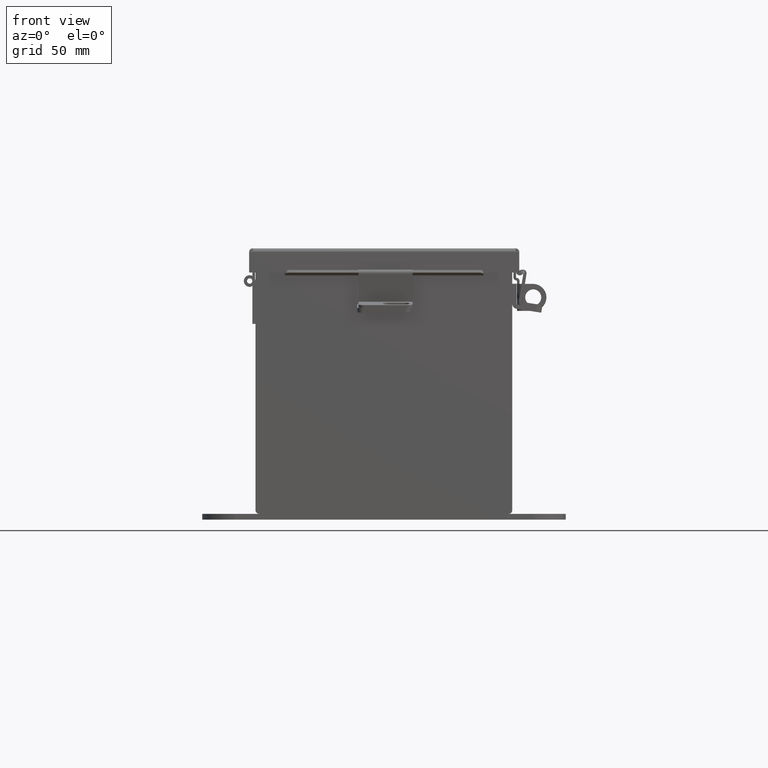
[diagram: clean part render]
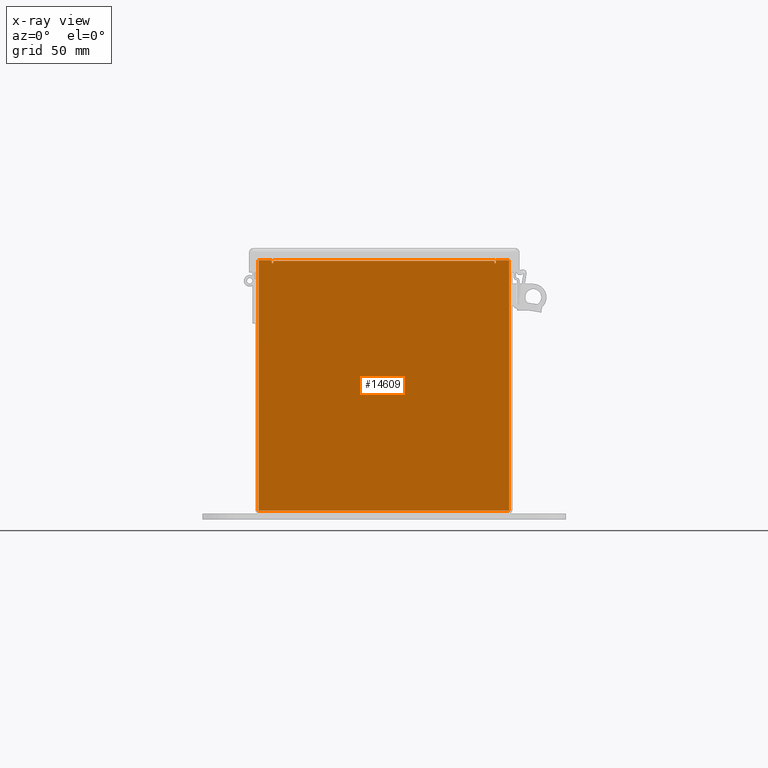
[diagram: x-ray — body ghosted, one internal face saturated and labeled with its STEP entity id]
A machine part, front view, then the same camera in x-ray: the body is ghosted and one INTERNAL B-rep face — a face not visible from any outside direction — is saturated and labeled: STEP entity #14609.
In plain terms, the highlighted planar face has unit normal (-0, 1, -0).
Its self-contained STEP definition (entity closure, byte-faithful):
#239 = VECTOR ( 'NONE', #3798, 39.37007874015748100 ) ;
#287 = DIRECTION ( 'NONE',  ( -1.000000000000000000, -5.526334185345597900E-031, 0.0000000000000000000 ) ) ;
#300 = CARTESIAN_POINT ( 'NONE',  ( 2.619650000000001800, -0.07469999999999797600, 2.874949999999998800 ) ) ;
#539 = CARTESIAN_POINT ( 'NONE',  ( -2.925299999999998200, -0.07470000000000015500, 2.925300000000000000 ) ) ;
#632 = LINE ( 'NONE', #539, #3313 ) ;
#1118 = LINE ( 'NONE', #300, #1848 ) ;
#1525 = LINE ( 'NONE', #14038, #10720 ) ;
#1708 = DIRECTION ( 'NONE',  ( 1.000000000000000000, 5.526334185345597900E-031, 0.0000000000000000000 ) ) ;
#1720 = CARTESIAN_POINT ( 'NONE',  ( 0.0000000000000000000, -0.07470000000000015500, 0.0000000000000000000 ) ) ;
#1848 = VECTOR ( 'NONE', #2578, 39.37007874015748100 ) ;
#1945 = ORIENTED_EDGE ( 'NONE', *, *, #4670, .F. ) ;
#2070 = CIRCLE ( 'NONE', #12274, 0.01867500000000003900 ) ;
#2073 = VERTEX_POINT ( 'NONE', #8975 ) ;
#2104 = VECTOR ( 'NONE', #3303, 39.37007874015748100 ) ;
#2140 = CARTESIAN_POINT ( 'NONE',  ( -2.619649999999998300, -0.07470000000000015500, 2.925299999999999100 ) ) ;
#2438 = EDGE_CURVE ( 'NONE', #12102, #5162, #12872, .T. ) ;
#2578 = DIRECTION ( 'NONE',  ( 1.085143195099989400E-014, -1.186875369640612000E-014, 1.000000000000000000 ) ) ;
#2649 = CARTESIAN_POINT ( 'NONE',  ( -2.925299999999998200, -0.07470000000000015500, 2.925300000000000000 ) ) ;
#2824 = PLANE ( 'NONE',  #5900 ) ;
#2869 = DIRECTION ( 'NONE',  ( 0.0000000000000000000, 0.0000000000000000000, -1.000000000000000000 ) ) ;
#2887 = ORIENTED_EDGE ( 'NONE', *, *, #8235, .F. ) ;
#3165 = CARTESIAN_POINT ( 'NONE',  ( -2.600974999999998300, -0.07469999999999907300, 2.874949999999999700 ) ) ;
#3303 = DIRECTION ( 'NONE',  ( 0.0000000000000000000, 0.0000000000000000000, -1.000000000000000000 ) ) ;
#3313 = VECTOR ( 'NONE', #1708, 39.37007874015748100 ) ;
#3438 = EDGE_LOOP ( 'NONE', ( #7491, #6012, #6727, #1945, #4649, #4490, #4234, #2887, #5893, #12651, #12156, #12629 ) ) ;
#3525 = VERTEX_POINT ( 'NONE', #6858 ) ;
#3661 = VECTOR ( 'NONE', #7683, 39.37007874015748100 ) ;
#3798 = DIRECTION ( 'NONE',  ( 1.000000000000000000, 5.526334185345597900E-031, 0.0000000000000000000 ) ) ;
#3884 = VECTOR ( 'NONE', #4735, 39.37007874015748100 ) ;
#3892 = DIRECTION ( 'NONE',  ( 0.0000000000000000000, 0.0000000000000000000, -1.000000000000000000 ) ) ;
#3964 = VERTEX_POINT ( 'NONE', #14067 ) ;
#4047 = VECTOR ( 'NONE', #10617, 39.37007874015748100 ) ;
#4234 = ORIENTED_EDGE ( 'NONE', *, *, #6755, .F. ) ;
#4327 = DIRECTION ( 'NONE',  ( 0.0000000000000000000, 0.0000000000000000000, -1.000000000000000000 ) ) ;
#4393 = VERTEX_POINT ( 'NONE', #11534 ) ;
#4490 = ORIENTED_EDGE ( 'NONE', *, *, #13754, .F. ) ;
#4649 = ORIENTED_EDGE ( 'NONE', *, *, #10759, .F. ) ;
#4670 = EDGE_CURVE ( 'NONE', #11809, #2073, #10006, .T. ) ;
#4735 = DIRECTION ( 'NONE',  ( 0.0000000000000000000, 0.0000000000000000000, 1.000000000000000000 ) ) ;
#4975 = CARTESIAN_POINT ( 'NONE',  ( 2.582300000000001400, -0.07469999999999907300, 2.874949999999998800 ) ) ;
#5162 = VERTEX_POINT ( 'NONE', #9178 ) ;
#5411 = VERTEX_POINT ( 'NONE', #8285 ) ;
#5413 = EDGE_CURVE ( 'NONE', #3964, #9016, #7102, .T. ) ;
#5851 = FACE_OUTER_BOUND ( 'NONE', #3438, .T. ) ;
#5893 = ORIENTED_EDGE ( 'NONE', *, *, #10471, .F. ) ;
#5900 = AXIS2_PLACEMENT_3D ( 'NONE', #1720, #9769, #2869 ) ;
#6012 = ORIENTED_EDGE ( 'NONE', *, *, #2438, .F. ) ;
#6168 = VERTEX_POINT ( 'NONE', #4975 ) ;
#6193 = CARTESIAN_POINT ( 'NONE',  ( -2.582299999999998300, -0.07470000000000015500, 2.912299999999998800 ) ) ;
#6465 = VERTEX_POINT ( 'NONE', #10043 ) ;
#6513 = CARTESIAN_POINT ( 'NONE',  ( -2.619649999999998300, -0.07469999999999907300, 2.925299999999999100 ) ) ;
#6687 = CARTESIAN_POINT ( 'NONE',  ( 2.600975000000001800, -0.07469999999999797600, 2.874949999999998800 ) ) ;
#6717 = CARTESIAN_POINT ( 'NONE',  ( 2.619650000000001800, -0.07469999999999907300, 2.874949999999998800 ) ) ;
#6727 = ORIENTED_EDGE ( 'NONE', *, *, #7184, .F. ) ;
#6755 = EDGE_CURVE ( 'NONE', #5411, #3525, #632, .T. ) ;
#6858 = CARTESIAN_POINT ( 'NONE',  ( 2.925300000000001800, -0.07469999999999907300, 2.925299999999999100 ) ) ;
#7102 = LINE ( 'NONE', #7138, #4047 ) ;
#7138 = CARTESIAN_POINT ( 'NONE',  ( -2.582299999999998300, -0.07469999999999907300, 2.874949999999999700 ) ) ;
#7143 = DIRECTION ( 'NONE',  ( 1.000000000000000000, 5.526334185345597900E-031, -0.0000000000000000000 ) ) ;
#7184 = EDGE_CURVE ( 'NONE', #2073, #12102, #9433, .T. ) ;
#7491 = ORIENTED_EDGE ( 'NONE', *, *, #10446, .F. ) ;
#7524 = LINE ( 'NONE', #13126, #13308 ) ;
#7683 = DIRECTION ( 'NONE',  ( 0.0000000000000000000, 1.186875369640613200E-014, -1.000000000000000000 ) ) ;
#7855 = DIRECTION ( 'NONE',  ( 0.0000000000000000000, 0.0000000000000000000, -1.000000000000000000 ) ) ;
#8235 = EDGE_CURVE ( 'NONE', #12091, #5411, #1118, .T. ) ;
#8285 = CARTESIAN_POINT ( 'NONE',  ( 2.619650000000001800, -0.07469999999999907300, 2.925299999999997800 ) ) ;
#8975 = CARTESIAN_POINT ( 'NONE',  ( -2.925299999999998200, -0.07470000000000015500, 2.925300000000000000 ) ) ;
#9016 = VERTEX_POINT ( 'NONE', #6193 ) ;
#9178 = CARTESIAN_POINT ( 'NONE',  ( -2.619649999999998300, -0.07470000000000015500, 2.874949999999998800 ) ) ;
#9433 = LINE ( 'NONE', #2649, #239 ) ;
#9620 = VECTOR ( 'NONE', #287, 39.37007874015748100 ) ;
#9769 = DIRECTION ( 'NONE',  ( -5.526334185345597900E-031, -1.000000000000000000, -0.0000000000000000000 ) ) ;
#9983 = LINE ( 'NONE', #14096, #9620 ) ;
#10006 = LINE ( 'NONE', #13964, #3884 ) ;
#10043 = CARTESIAN_POINT ( 'NONE',  ( 2.925299999999996900, -0.07470000000000015500, -2.925300000000005300 ) ) ;
#10446 = EDGE_CURVE ( 'NONE', #5162, #3964, #2070, .T. ) ;
#10471 = EDGE_CURVE ( 'NONE', #6168, #12091, #13602, .T. ) ;
#10617 = DIRECTION ( 'NONE',  ( 0.0000000000000000000, 0.0000000000000000000, 1.000000000000000000 ) ) ;
#10720 = VECTOR ( 'NONE', #7143, 39.37007874015748100 ) ;
#10759 = EDGE_CURVE ( 'NONE', #6465, #11809, #9983, .T. ) ;
#11230 = DIRECTION ( 'NONE',  ( -5.526334185345597900E-031, -1.000000000000000000, 0.0000000000000000000 ) ) ;
#11372 = CARTESIAN_POINT ( 'NONE',  ( 2.925300000000001800, -0.07469999999999907300, 2.925299999999999100 ) ) ;
#11534 = CARTESIAN_POINT ( 'NONE',  ( 2.582300000000001400, -0.07469999999999907300, 2.912299999999997900 ) ) ;
#11775 = CARTESIAN_POINT ( 'NONE',  ( -2.925300000000003600, -0.07470000000000015500, -2.925300000000005300 ) ) ;
#11809 = VERTEX_POINT ( 'NONE', #11775 ) ;
#12091 = VERTEX_POINT ( 'NONE', #6717 ) ;
#12102 = VERTEX_POINT ( 'NONE', #2140 ) ;
#12156 = ORIENTED_EDGE ( 'NONE', *, *, #14908, .F. ) ;
#12274 = AXIS2_PLACEMENT_3D ( 'NONE', #3165, #11230, #4327 ) ;
#12629 = ORIENTED_EDGE ( 'NONE', *, *, #5413, .F. ) ;
#12651 = ORIENTED_EDGE ( 'NONE', *, *, #13477, .F. ) ;
#12755 = LINE ( 'NONE', #11372, #2104 ) ;
#12872 = LINE ( 'NONE', #6513, #3661 ) ;
#13126 = CARTESIAN_POINT ( 'NONE',  ( 2.582300000000001400, -0.07469999999999797600, 2.912299999999997900 ) ) ;
#13308 = VECTOR ( 'NONE', #3892, 39.37007874015748100 ) ;
#13477 = EDGE_CURVE ( 'NONE', #4393, #6168, #7524, .T. ) ;
#13602 = CIRCLE ( 'NONE', #14581, 0.01867500000000003900 ) ;
#13754 = EDGE_CURVE ( 'NONE', #3525, #6465, #12755, .T. ) ;
#13964 = CARTESIAN_POINT ( 'NONE',  ( -2.925299999999998200, -0.07470000000000015500, 2.925300000000000000 ) ) ;
#14038 = CARTESIAN_POINT ( 'NONE',  ( -2.582299999999998300, -0.07469999999999907300, 2.912299999999998800 ) ) ;
#14067 = CARTESIAN_POINT ( 'NONE',  ( -2.582299999999998300, -0.07470000000000015500, 2.874949999999999700 ) ) ;
#14096 = CARTESIAN_POINT ( 'NONE',  ( -2.925300000000003600, -0.07470000000000015500, -2.925300000000005300 ) ) ;
#14581 = AXIS2_PLACEMENT_3D ( 'NONE', #6687, #14742, #7855 ) ;
#14609 = ADVANCED_FACE ( 'NONE', ( #5851 ), #2824, .T. ) ;
#14742 = DIRECTION ( 'NONE',  ( -5.526334185345597900E-031, -1.000000000000000000, 0.0000000000000000000 ) ) ;
#14908 = EDGE_CURVE ( 'NONE', #9016, #4393, #1525, .T. ) ;